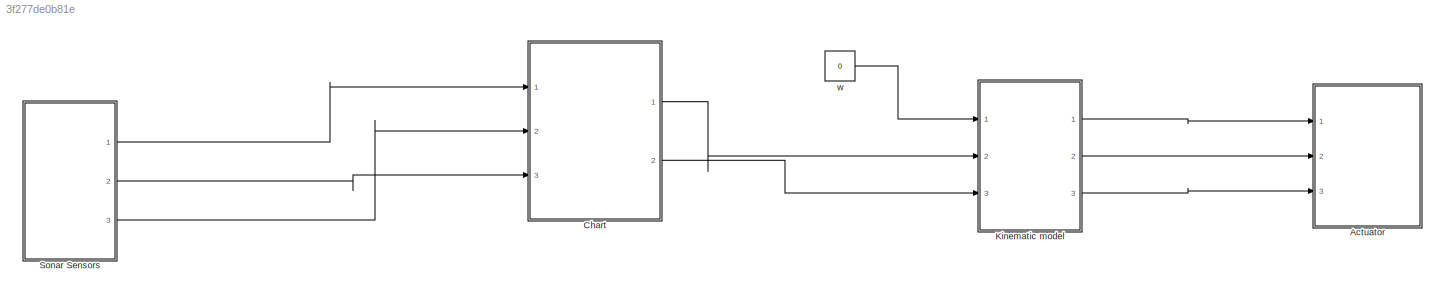
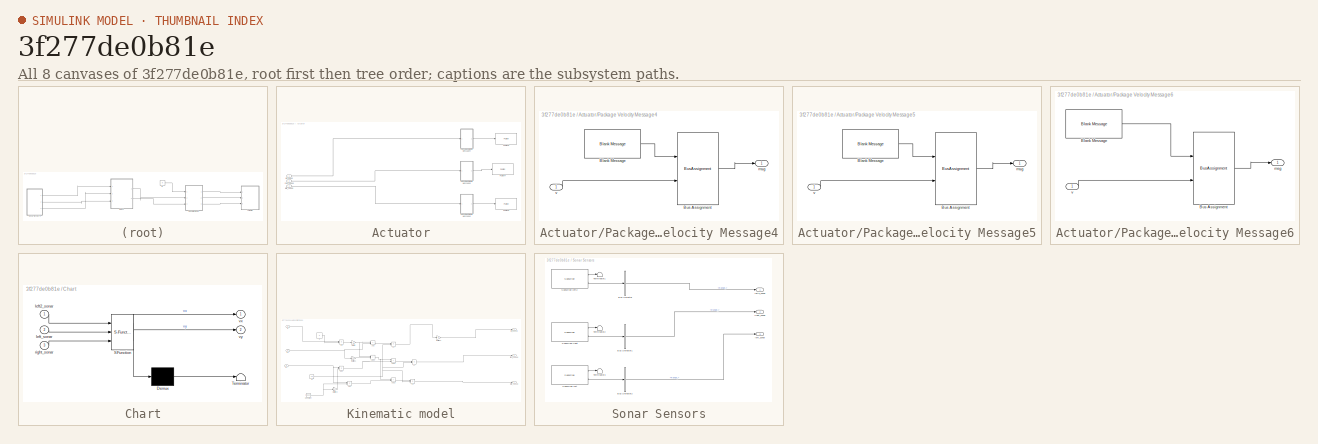
[diagram: thumbnail index - all 8 canvases of the model, root first then tree order]
MODEL slx_3f277de0b81e
KIND model
CONFIG AbsTol = auto
CONFIG EnableMultiTasking = on
CONFIG FixedStep = 0.01
CONFIG MaxStep = auto
CONFIG MinStep = auto
CONFIG RelTol = 1e-3
CONFIG SampleTimeConstraint = Unconstrained
CONFIG Solver = ode3
CONFIG SolverName = ode3
CONFIG StartTime = 0.0
CONFIG StopTime = inf
BLOCK [SubSystem] Actuator
  Ports = [3]
  RequestExecContextInheritance = off
BLOCK [SubSystem] Actuator/Package Velocity Message4
  Ports = [1, 1]
  RequestExecContextInheritance = off
BLOCK [Reference] Actuator/Package Velocity Message4/Blank Message  REF=robotlib/Blank Message
  Ports = [0, 1]
  SourceBlock = robotlib/Blank Message
  SourceProductBaseCode = RR
  SourceType = ROS Blank Message
BLOCK [BusAssignment] Actuator/Package Velocity Message4/Bus Assignment
  AssignedSignals = Data
  Ports = [2, 1]
BLOCK [Outport] Actuator/Package Velocity Message4/msg
  VectorParamsAs1DForOutWhenUnconnected = off
BLOCK [Inport] Actuator/Package Velocity Message4/v
BLOCK [SubSystem] Actuator/Package Velocity Message5
  Ports = [1, 1]
  RequestExecContextInheritance = off
BLOCK [Reference] Actuator/Package Velocity Message5/Blank Message  REF=robotlib/Blank Message
  Ports = [0, 1]
  SourceBlock = robotlib/Blank Message
  SourceProductBaseCode = RR
  SourceType = ROS Blank Message
BLOCK [BusAssignment] Actuator/Package Velocity Message5/Bus Assignment
  AssignedSignals = Data
  Ports = [2, 1]
BLOCK [Outport] Actuator/Package Velocity Message5/msg
  VectorParamsAs1DForOutWhenUnconnected = off
BLOCK [Inport] Actuator/Package Velocity Message5/v
BLOCK [SubSystem] Actuator/Package Velocity Message6
  Ports = [1, 1]
  RequestExecContextInheritance = off
BLOCK [Reference] Actuator/Package Velocity Message6/Blank Message  REF=robotlib/Blank Message
  Ports = [0, 1]
  SourceBlock = robotlib/Blank Message
  SourceProductBaseCode = RR
  SourceType = ROS Blank Message
BLOCK [BusAssignment] Actuator/Package Velocity Message6/Bus Assignment
  AssignedSignals = Data
  Ports = [2, 1]
BLOCK [Outport] Actuator/Package Velocity Message6/msg
  VectorParamsAs1DForOutWhenUnconnected = off
BLOCK [Inport] Actuator/Package Velocity Message6/v
BLOCK [Reference] Actuator/Publish4  REF=robotlib/Publish
  Ports = [1]
  SourceBlock = robotlib/Publish
  SourceProductBaseCode = RR
  SourceType = ROS Publish
BLOCK [Reference] Actuator/Publish5  REF=robotlib/Publish
  Ports = [1]
  SourceBlock = robotlib/Publish
  SourceProductBaseCode = RR
  SourceType = ROS Publish
BLOCK [Reference] Actuator/Publish6  REF=robotlib/Publish
  Ports = [1]
  SourceBlock = robotlib/Publish
  SourceProductBaseCode = RR
  SourceType = ROS Publish
BLOCK [Inport] Actuator/left2_speed
  Port = 3
BLOCK [Inport] Actuator/left_speed
BLOCK [Inport] Actuator/right_speed
  Port = 2
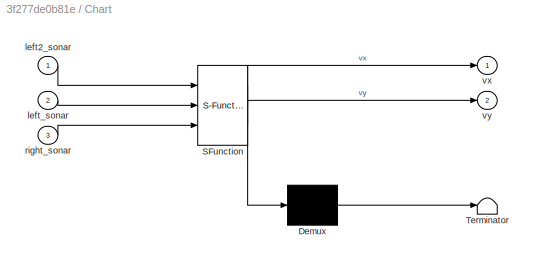
BLOCK [SubSystem] Chart
  ErrorFcn = Stateflow.Translate.translate
  PermitHierarchicalResolution = ExplicitOnly
  Ports = [3, 2]
  RequestExecContextInheritance = off
  SFBlockType = Chart
  TreatAsAtomicUnit = on
BLOCK [Demux] Chart/ Demux 
  Outputs = 1
  Ports = [1, 1]
BLOCK [S-Function] Chart/ SFunction 
  EnableBusSupport = on
  FunctionName = sf_sfun
  PortCounts = [3 3]
  Ports = [3, 3]
  SFcnIsStateOwnerBlock = off
  SFunctionDeploymentMode = off
  Tag = Stateflow S-Function 2
BLOCK [Terminator] Chart/ Terminator 
BLOCK [Inport] Chart/left2_sonar
BLOCK [Inport] Chart/left_sonar
  Port = 2
BLOCK [Inport] Chart/right_sonar
  Port = 3
BLOCK [Outport] Chart/vx
BLOCK [Outport] Chart/vy
  Port = 2
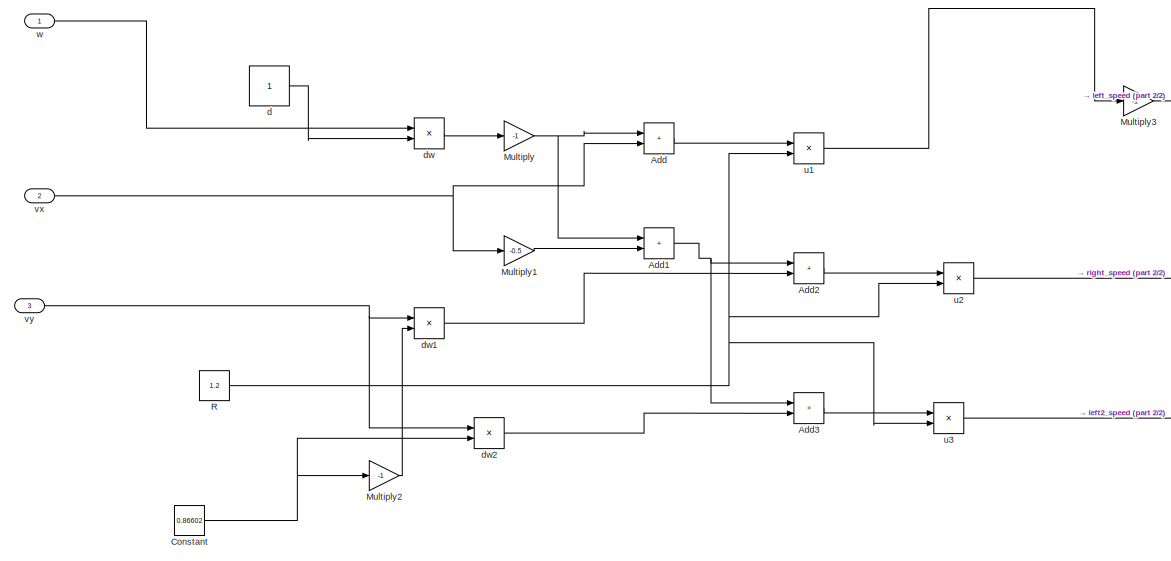
[diagram: Kinematic model - part 1/2, center side, full height]
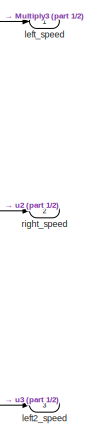
[diagram: Kinematic model - part 2/2, middle right region]
BLOCK [SubSystem] Kinematic model
  Ports = [3, 3]
  RequestExecContextInheritance = off
BLOCK [Sum] Kinematic model/Add
  IconShape = rectangular
  Ports = [2, 1]
BLOCK [Sum] Kinematic model/Add1
  IconShape = rectangular
  Ports = [2, 1]
BLOCK [Sum] Kinematic model/Add2
  IconShape = rectangular
  Ports = [2, 1]
BLOCK [Sum] Kinematic model/Add3
  IconShape = rectangular
  Ports = [2, 1]
BLOCK [Constant] Kinematic model/Constant
  Value = 0.86602
BLOCK [Gain] Kinematic model/Multiply
  Gain = -1
BLOCK [Gain] Kinematic model/Multiply1
  Gain = -0.5
BLOCK [Gain] Kinematic model/Multiply2
  Gain = -1
BLOCK [Gain] Kinematic model/Multiply3
  Gain = -1
BLOCK [Constant] Kinematic model/R
  Value = 1.2
BLOCK [Constant] Kinematic model/d
  SampleTime = -1
  VectorParams1D = off
BLOCK [Product] Kinematic model/dw
  Ports = [2, 1]
BLOCK [Product] Kinematic model/dw1
  Ports = [2, 1]
BLOCK [Product] Kinematic model/dw2
  Ports = [2, 1]
BLOCK [Outport] Kinematic model/left2_speed
  Port = 3
BLOCK [Outport] Kinematic model/left_speed
BLOCK [Outport] Kinematic model/right_speed
  Port = 2
BLOCK [Product] Kinematic model/u1
  Inputs = */
  Ports = [2, 1]
BLOCK [Product] Kinematic model/u2
  Inputs = */
  Ports = [2, 1]
BLOCK [Product] Kinematic model/u3
  Inputs = */
  Ports = [2, 1]
BLOCK [Inport] Kinematic model/vx
  Port = 2
BLOCK [Inport] Kinematic model/vy
  Port = 3
BLOCK [Inport] Kinematic model/w
BLOCK [SubSystem] Sonar Sensors
  Ports = [0, 3]
  RequestExecContextInheritance = off
BLOCK [BusSelector] Sonar Sensors/Bus Selector
  OutputSignals = Range_
  Ports = [1, 1]
BLOCK [BusSelector] Sonar Sensors/Bus Selector1
  OutputSignals = Range_
  Ports = [1, 1]
BLOCK [BusSelector] Sonar Sensors/Bus Selector2
  OutputSignals = Range_
  Ports = [1, 1]
BLOCK [Reference] Sonar Sensors/Subscribe left  REF=robotlib/Subscribe
  Ports = [0, 2]
  SourceBlock = robotlib/Subscribe
  SourceProductBaseCode = RR
  SourceType = ROS Subscribe
BLOCK [Reference] Sonar Sensors/Subscribe left2  REF=robotlib/Subscribe
  Ports = [0, 2]
  SourceBlock = robotlib/Subscribe
  SourceProductBaseCode = RR
  SourceType = ROS Subscribe
BLOCK [Reference] Sonar Sensors/Subscribe right  REF=robotlib/Subscribe
  Ports = [0, 2]
  SourceBlock = robotlib/Subscribe
  SourceProductBaseCode = RR
  SourceType = ROS Subscribe
BLOCK [Terminator] Sonar Sensors/Terminator1
BLOCK [Terminator] Sonar Sensors/Terminator2
BLOCK [Terminator] Sonar Sensors/Terminator3
BLOCK [Outport] Sonar Sensors/left2_sonar
BLOCK [Outport] Sonar Sensors/left_sonar
  Port = 3
BLOCK [Outport] Sonar Sensors/right_sonar
  Port = 2
BLOCK [Constant] w
  Value = 0
LINE Actuator/Package Velocity Message4/Blank Message:1 -> Actuator/Package Velocity Message4/Bus Assignment:1
LINE Actuator/Package Velocity Message4/Bus Assignment:1 -> Actuator/Package Velocity Message4/msg:1
LINE Actuator/Package Velocity Message4/v:1 -> Actuator/Package Velocity Message4/Bus Assignment:2
LINE Actuator/Package Velocity Message4:1 -> Actuator/Publish5:1
LINE Actuator/Package Velocity Message5/Blank Message:1 -> Actuator/Package Velocity Message5/Bus Assignment:1
LINE Actuator/Package Velocity Message5/Bus Assignment:1 -> Actuator/Package Velocity Message5/msg:1
LINE Actuator/Package Velocity Message5/v:1 -> Actuator/Package Velocity Message5/Bus Assignment:2
LINE Actuator/Package Velocity Message5:1 -> Actuator/Publish4:1
LINE Actuator/Package Velocity Message6/Blank Message:1 -> Actuator/Package Velocity Message6/Bus Assignment:1
LINE Actuator/Package Velocity Message6/Bus Assignment:1 -> Actuator/Package Velocity Message6/msg:1
LINE Actuator/Package Velocity Message6/v:1 -> Actuator/Package Velocity Message6/Bus Assignment:2
LINE Actuator/Package Velocity Message6:1 -> Actuator/Publish6:1
LINE Actuator/left2_speed:1 -> Actuator/Package Velocity Message6:1
LINE Actuator/left_speed:1 -> Actuator/Package Velocity Message4:1
LINE Actuator/right_speed:1 -> Actuator/Package Velocity Message5:1
LINE Chart:1 -> Kinematic model:2
LINE Chart:2 -> Kinematic model:3
NET Kinematic model/Add1:1 -> Kinematic model/Add2:1, Kinematic model/Add3:1
LINE Kinematic model/Add2:1 -> Kinematic model/u2:1
LINE Kinematic model/Add3:1 -> Kinematic model/u3:1
LINE Kinematic model/Add:1 -> Kinematic model/u1:1
NET Kinematic model/Constant:1 -> Kinematic model/Multiply2:1, Kinematic model/dw2:2
LINE Kinematic model/Multiply1:1 -> Kinematic model/Add1:2
LINE Kinematic model/Multiply2:1 -> Kinematic model/dw1:2
LINE Kinematic model/Multiply3:1 -> Kinematic model/left_speed:1
NET Kinematic model/Multiply:1 -> Kinematic model/Add1:1, Kinematic model/Add:1
NET Kinematic model/R:1 -> Kinematic model/u1:2, Kinematic model/u2:2, Kinematic model/u3:2
LINE Kinematic model/d:1 -> Kinematic model/dw:2
LINE Kinematic model/dw1:1 -> Kinematic model/Add2:2
LINE Kinematic model/dw2:1 -> Kinematic model/Add3:2
LINE Kinematic model/dw:1 -> Kinematic model/Multiply:1
LINE Kinematic model/u1:1 -> Kinematic model/Multiply3:1
LINE Kinematic model/u2:1 -> Kinematic model/right_speed:1
LINE Kinematic model/u3:1 -> Kinematic model/left2_speed:1
NET Kinematic model/vx:1 -> Kinematic model/Add:2, Kinematic model/Multiply1:1
NET Kinematic model/vy:1 -> Kinematic model/dw1:1, Kinematic model/dw2:1
LINE Kinematic model/w:1 -> Kinematic model/dw:1
LINE Kinematic model:1 -> Actuator:1
LINE Kinematic model:2 -> Actuator:2
LINE Kinematic model:3 -> Actuator:3
LINE Sonar Sensors/Bus Selector1:1 -> Sonar Sensors/right_sonar:1
LINE Sonar Sensors/Bus Selector2:1 -> Sonar Sensors/left_sonar:1
LINE Sonar Sensors/Bus Selector:1 -> Sonar Sensors/left2_sonar:1
LINE Sonar Sensors/Subscribe left2:1 -> Sonar Sensors/Terminator1:1
LINE Sonar Sensors/Subscribe left2:2 -> Sonar Sensors/Bus Selector:1
LINE Sonar Sensors/Subscribe left:1 -> Sonar Sensors/Terminator3:1
LINE Sonar Sensors/Subscribe left:2 -> Sonar Sensors/Bus Selector2:1
LINE Sonar Sensors/Subscribe right:1 -> Sonar Sensors/Terminator2:1
LINE Sonar Sensors/Subscribe right:2 -> Sonar Sensors/Bus Selector1:1
LINE Sonar Sensors:1 -> Chart:1
LINE Sonar Sensors:2 -> Chart:3
LINE Sonar Sensors:3 -> Chart:2
LINE w:1 -> Kinematic model:1
note: NET lines group one-source signal fan-out (src -> all destinations, sorted); 1:1 wires keep LINE
CHART Chart states=8 transitions=14
  STATE_LABEL 'left2_obs\nentry:\nvx = speed_gain;\nvy = 0.57735026919 *speed_gain;'
  STATE_LABEL 'INIT\nentry:\nspeed_gain = 7;\nvy = 10;'
  STATE_LABEL 'MAIN_STATE\n'
  STATE_LABEL 'left_left2_obs\nentry:\nvx = speed_gain;\nvy = -0.57735026919 *speed_gain;'
  STATE_LABEL 'left_right_obs\nentry:\nvy = -0.57735026919 * speed_gain ;\nvx = -1*speed_gain;'
  STATE_LABEL 'right_obs\nentry:\nvx = -1*speed_gain;\nvy = 0.57735026919 *speed_gain;'
  STATE_LABEL 'right_left2_obs\nentry:\nvx = 0;\nvy = speed_gain;'
  STATE_LABEL 'left_obs\nentry:\nvx = 0;\nvy =-1*speed_gain;'
CHART  states=0 transitions=0
